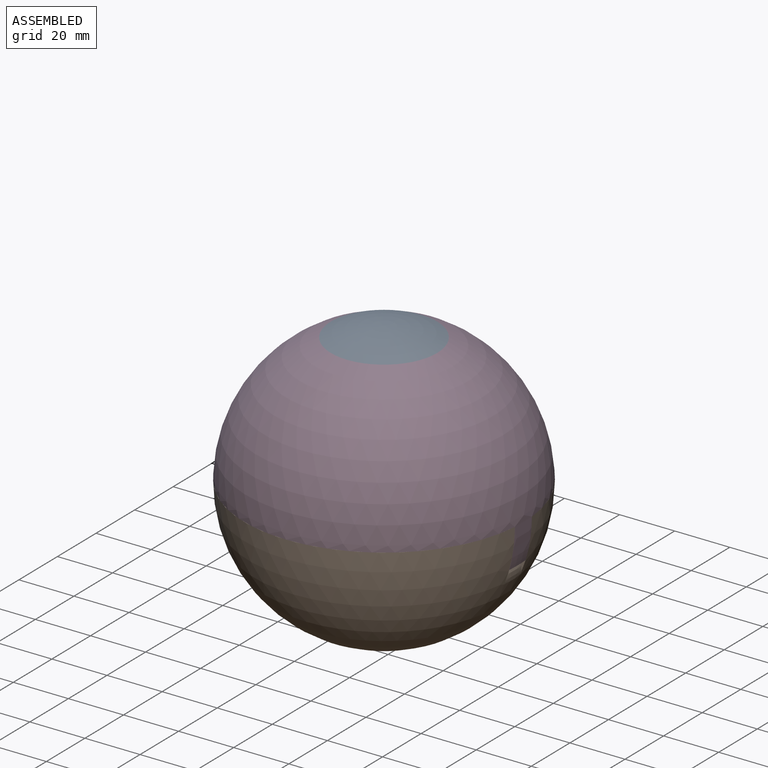
[diagram: assembled view]
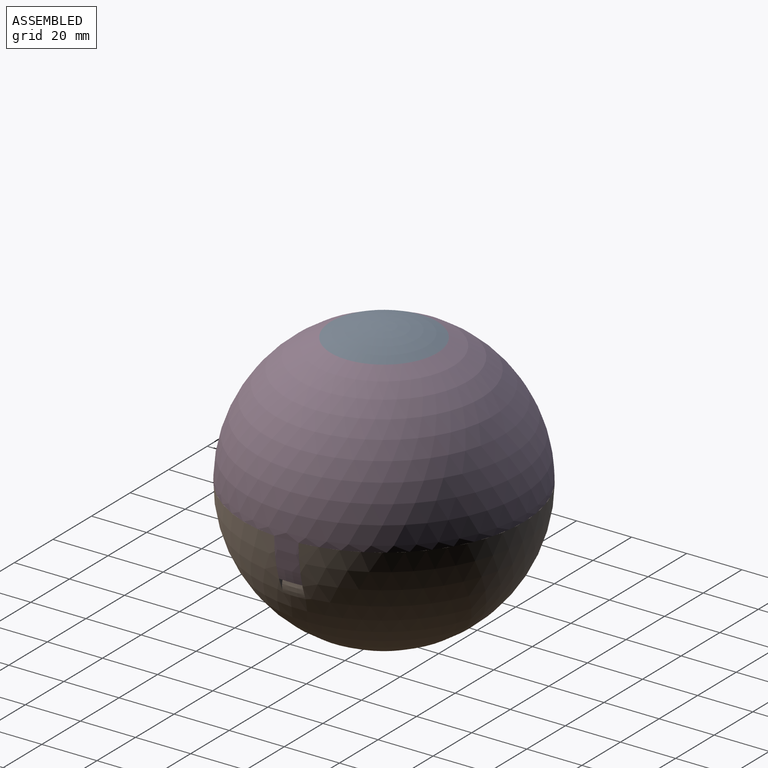
[diagram: assembled view, second angle]
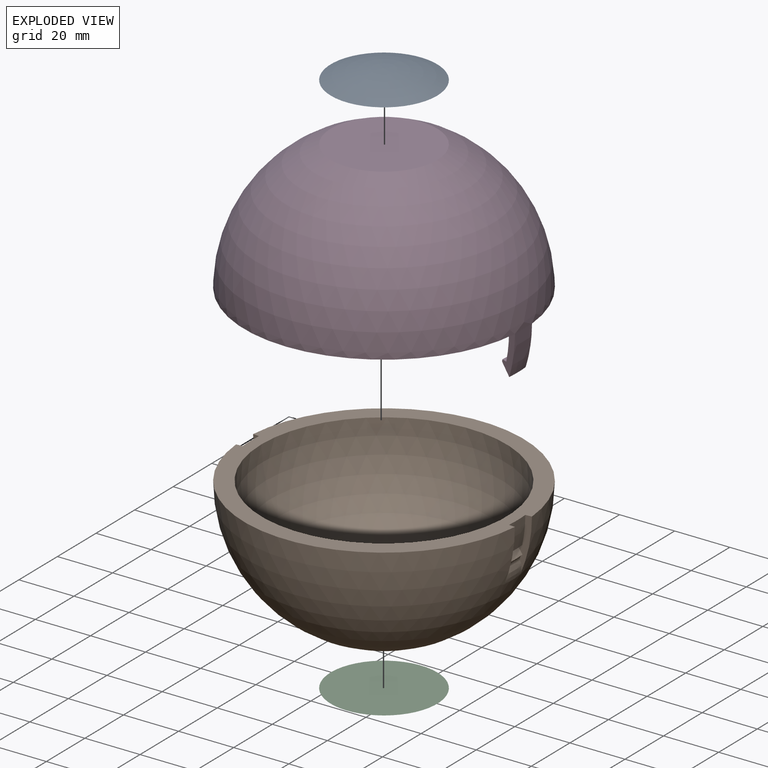
[diagram: exploded view]
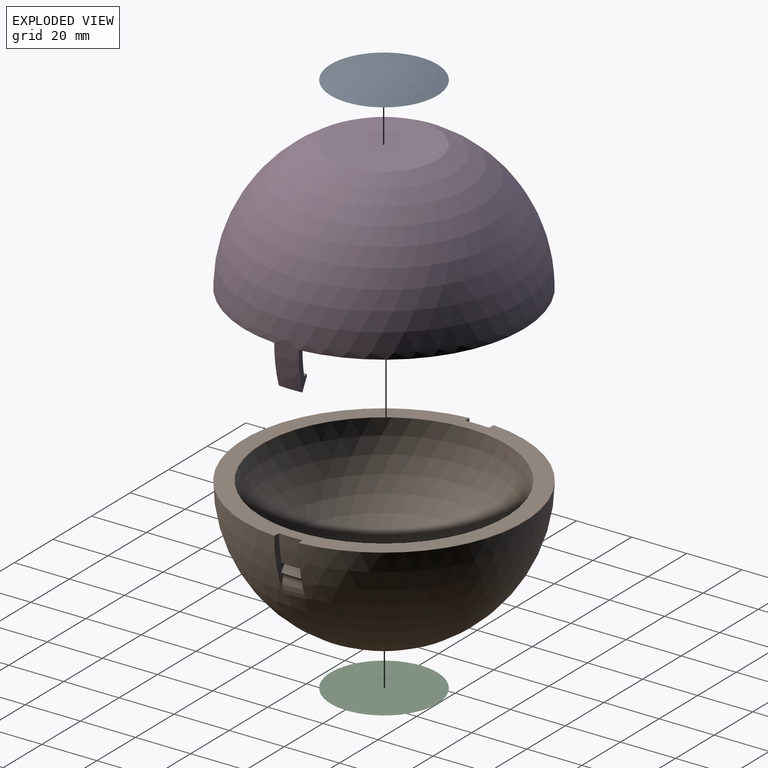
[diagram: exploded view, second angle]
ASSEMBLY  parts=4 mates=3
PART A: 2 faces, bbox 38.6x38.6x3.8 mm
  f0: plane 38.6x38.6mm, normal (0,0,-1), area 1170.5mm2, adj f1
  f1: sphere r=50.8mm, area 1216.1mm2, adj f0
PART B: 20 faces, bbox 101.6x101.6x47 mm
  f0: sphere r=50.8mm, area 14641.9mm2, adj f1,f3,f8,f10,f11,f16,f18,f19
  f1: plane 38.6x38.6mm, normal (0,0,1), area 1170.5mm2, adj f0
  f2: sphere r=44.45mm, area 12414.3mm2, adj f3
  f3: plane 101.6x101.21mm, normal (0,0,-1), area 1860.5mm2, adj f0,f2,f9,f10,f11,f17,f18,f19
  f4: cone r=45.96mm half-angle=78deg, axis (0,0,1), area 12.4mm2, adj f5,f9,f10,f11
  f5: cone r=45.96mm half-angle=12deg, axis (0,0,-1), area 6.1mm2, adj f4,f6,f10,f11
  f6: cone r=45.8mm half-angle=33deg, axis (0,0,1), area 26.2mm2, adj f5,f7,f10,f11
  f7: torus R=48.59mm, axis (0,0,-1), area 20.9mm2, adj f6,f8,f10,f11
  f8: torus R=40.82mm, axis (0,0,-1), area 39.1mm2, adj f0,f7,f10,f11
  f9: sphere r=48.51mm, area 85.4mm2, adj f3,f4,f10,f11
  f10: plane 20.11x4.98mm, normal (0.09,1,0), area 39.1mm2, adj f0,f3,f4,f5,f6,f7,f8,f9
  f11: plane 20.11x4.98mm, normal (0.09,-1,0), area 39.1mm2, adj f0,f3,f4,f5,f6,f7,f8,f9
  f12: cone r=45.96mm half-angle=78deg, axis (0,0,1), area 12.4mm2, adj f13,f17,f18,f19
  f13: cone r=45.96mm half-angle=12deg, axis (0,0,-1), area 6.1mm2, adj f12,f14,f18,f19
  f14: cone r=45.8mm half-angle=33deg, axis (0,0,1), area 26.2mm2, adj f13,f15,f18,f19
  f15: torus R=48.59mm, axis (0,0,-1), area 20.9mm2, adj f14,f16,f18,f19
  f16: torus R=40.82mm, axis (0,0,-1), area 39.1mm2, adj f0,f15,f18,f19
  f17: sphere r=48.51mm, area 85.4mm2, adj f3,f12,f18,f19
  f18: plane 20.11x4.98mm, normal (-0.09,-1,0), area 39.1mm2, adj f0,f3,f12,f13,f14,f15,f16,f17
  f19: plane 20.11x4.98mm, normal (-0.09,1,0), area 39.1mm2, adj f0,f3,f12,f13,f14,f15,f16,f17
PART C: same geometry as A
PART D: 18 faces, bbox 101.6x101.6x61.8 mm
  f0: plane 101.6x101.21mm, normal (0,0,-1), area 1860.5mm2, adj f1,f6,f8,f9,f10,f11,f16,f17
  f1: sphere r=48.51mm, area 85.4mm2, adj f0,f2,f9,f10
  f2: cone r=47.45mm half-angle=78deg, axis (0,0,-1), area 12.4mm2, adj f1,f3,f9,f10
  f3: cone r=45.96mm half-angle=12deg, axis (0,0,1), area 6.1mm2, adj f2,f4,f9,f10
  f4: cone r=45.8mm half-angle=33deg, axis (0,0,-1), area 42.2mm2, adj f3,f5,f9,f10
  f5: torus R=0.13mm, axis (0,0,-1), area 37.7mm2, adj f4,f6,f9,f10
  f6: sphere r=50.8mm, area 15185.8mm2, adj f0,f5,f7,f9,f10,f15,f16,f17
  f7: plane 38.6x38.6mm, normal (0,0,1), area 1170.5mm2, adj f6
  f8: sphere r=44.45mm, area 12414.3mm2, adj f0
  f9: plane 14.81x4.98mm, normal (-0.09,1,0), area 33.6mm2, adj f0,f1,f2,f3,f4,f5,f6
  f10: plane 14.81x4.98mm, normal (-0.09,-1,0), area 33.6mm2, adj f0,f1,f2,f3,f4,f5,f6
  f11: sphere r=48.51mm, area 85.4mm2, adj f0,f12,f16,f17
  f12: cone r=47.45mm half-angle=78deg, axis (0,0,-1), area 12.4mm2, adj f11,f13,f16,f17
  f13: cone r=45.96mm half-angle=12deg, axis (0,0,1), area 6.1mm2, adj f12,f14,f16,f17
  f14: cone r=45.8mm half-angle=33deg, axis (0,0,-1), area 42.2mm2, adj f13,f15,f16,f17
  f15: torus R=0.13mm, axis (0,0,-1), area 37.7mm2, adj f6,f14,f16,f17
  f16: plane 14.81x4.98mm, normal (0.09,-1,0), area 33.6mm2, adj f0,f6,f11,f12,f13,f14,f15
  f17: plane 14.81x4.98mm, normal (0.09,1,0), area 33.6mm2, adj f0,f6,f11,f12,f13,f14,f15
PLACE A t=(-19.46,8.57,13.61)mm
PLACE B rot(axis=(1,0,0),180deg) t=(-19.46,8.57,13.61)mm
PLACE C rot(axis=(0,-1,0),180deg) t=(-19.46,8.57,13.61)mm
PLACE D t=(-19.46,8.57,13.61)mm
MATE fastened B.f4 <-> D.f2  axis (0,0,-1) through (-19.46,8.57,13.61)mm
MATE fastened C.f0 <-> B.f4  axis (0,0,-1) through (-19.46,8.57,-33.38)mm
MATE fastened A.f0 <-> D.f2  axis (0,0,1) through (-19.46,8.57,60.6)mm
